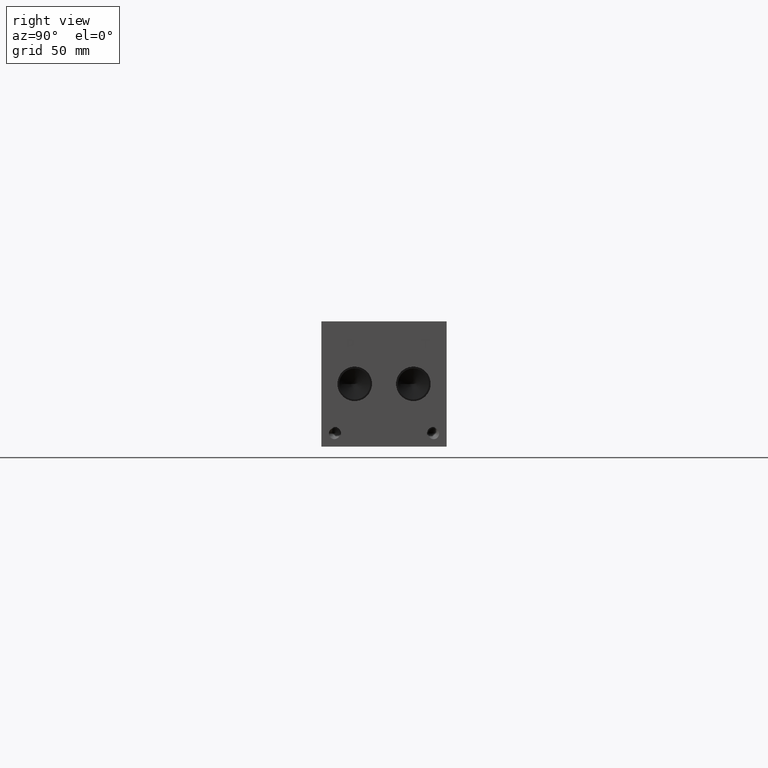
[diagram: clean part render]
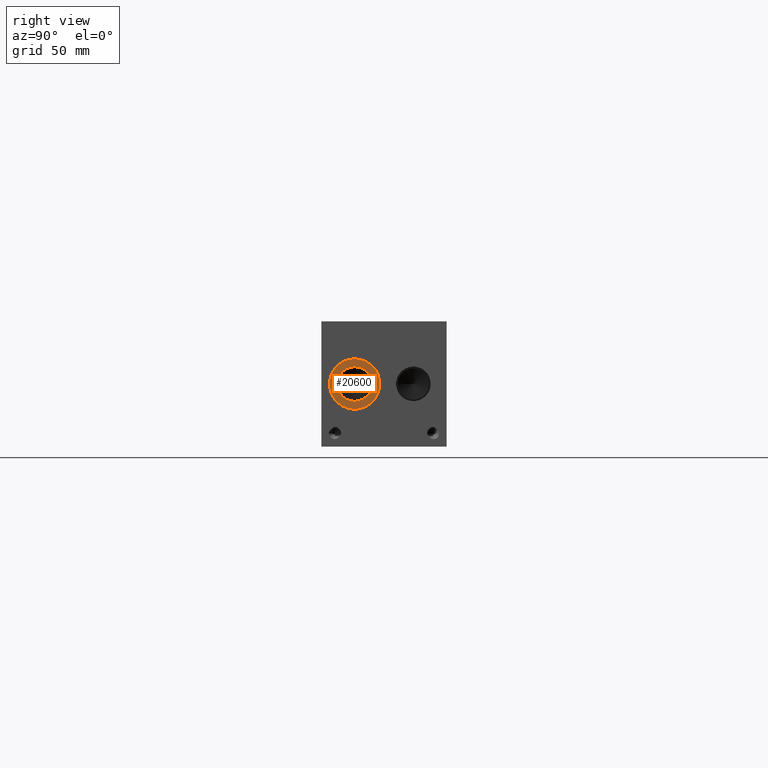
[diagram: same view with one face highlighted and labeled with its STEP entity id]
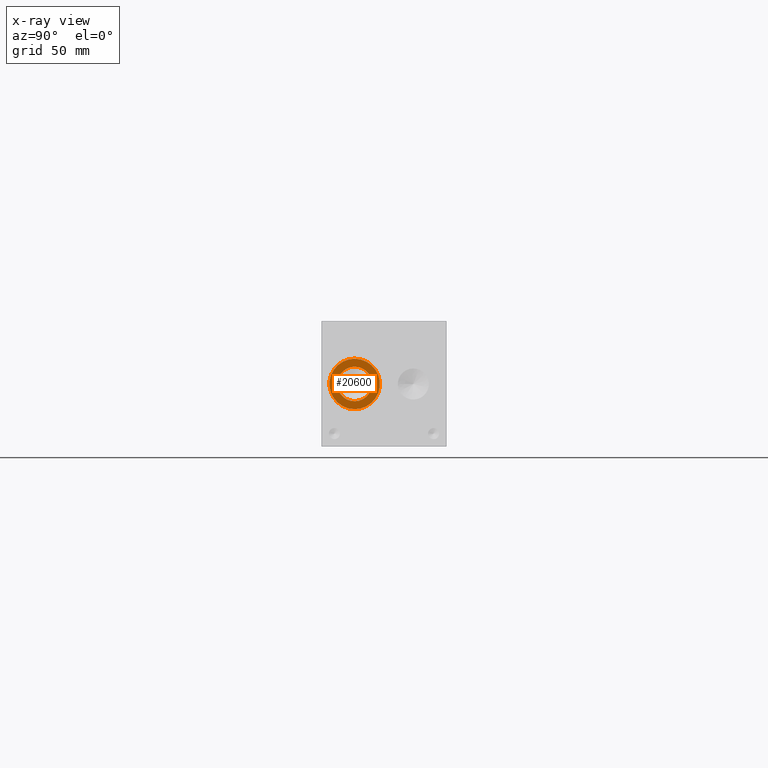
[diagram: x-ray of the same camera — body ghosted, the highlighted face saturated]
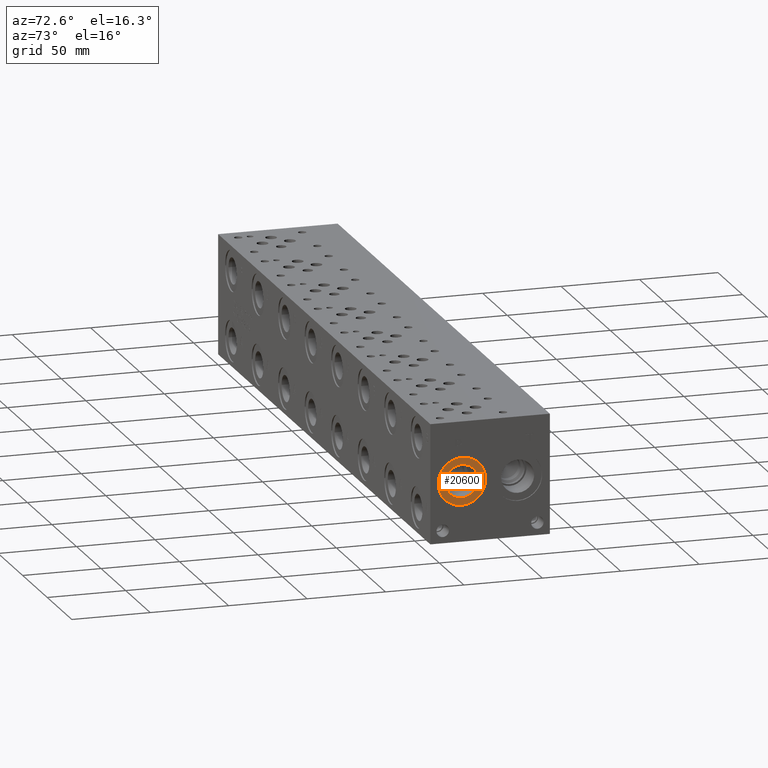
[diagram: same view with one face highlighted and labeled with its STEP entity id]
A machine part, right view. The second image highlights one B-rep face of the part: STEP entity #20600.
The next image is the same camera in x-ray: the body ghosted, the highlighted face saturated — about 0% of this face is hidden behind the body in this view.
A second angle (auxiliary view) of the same face is appended — the face is thin or edge-on in the first view.
In plain terms, the highlighted planar face has unit normal (-1, 0, 0).
Its self-contained STEP definition (entity closure, byte-faithful):
#827=CIRCLE('',#21726,15.3416);
#828=CIRCLE('',#21727,15.3416);
#829=CIRCLE('',#21729,10.5283);
#830=CIRCLE('',#21730,10.5283);
#1888=FACE_BOUND('',#4053,.T.);
#2834=FACE_OUTER_BOUND('',#4052,.T.);
#4052=EDGE_LOOP('',(#17224,#17225));
#4053=EDGE_LOOP('',(#17226,#17227));
#9355=VERTEX_POINT('',#34967);
#9356=VERTEX_POINT('',#34969);
#9357=VERTEX_POINT('',#34973);
#9358=VERTEX_POINT('',#34974);
#12122=EDGE_CURVE('',#9355,#9356,#827,.T.);
#12123=EDGE_CURVE('',#9356,#9355,#828,.T.);
#12124=EDGE_CURVE('',#9357,#9358,#829,.T.);
#12125=EDGE_CURVE('',#9358,#9357,#830,.T.);
#17224=ORIENTED_EDGE('',*,*,#12123,.F.);
#17225=ORIENTED_EDGE('',*,*,#12122,.F.);
#17226=ORIENTED_EDGE('',*,*,#12124,.T.);
#17227=ORIENTED_EDGE('',*,*,#12125,.T.);
#19061=PLANE('',#21728);
#20600=ADVANCED_FACE('',(#2834,#1888),#19061,.F.);
#21726=AXIS2_PLACEMENT_3D('',#34970,#25644,#25645);
#21727=AXIS2_PLACEMENT_3D('',#34971,#25646,#25647);
#21728=AXIS2_PLACEMENT_3D('',#34972,#25648,#25649);
#21729=AXIS2_PLACEMENT_3D('',#34975,#25650,#25651);
#21730=AXIS2_PLACEMENT_3D('',#34976,#25652,#25653);
#25644=DIRECTION('center_axis',(-1.,0.,0.));
#25645=DIRECTION('ref_axis',(0.,0.,1.));
#25646=DIRECTION('center_axis',(-1.,0.,0.));
#25647=DIRECTION('ref_axis',(0.,0.,1.));
#25648=DIRECTION('center_axis',(-1.,0.,0.));
#25649=DIRECTION('ref_axis',(0.,0.,1.));
#25650=DIRECTION('center_axis',(-1.,0.,0.));
#25651=DIRECTION('ref_axis',(0.,0.,1.));
#25652=DIRECTION('center_axis',(-1.,0.,0.));
#25653=DIRECTION('ref_axis',(0.,0.,1.));
#34967=CARTESIAN_POINT('',(431.0126,20.2438,53.4416));
#34969=CARTESIAN_POINT('',(431.0126,20.2438,22.7584));
#34970=CARTESIAN_POINT('Origin',(431.0126,20.2438,38.1));
#34971=CARTESIAN_POINT('Origin',(431.0126,20.2438,38.1));
#34972=CARTESIAN_POINT('Origin',(431.0126,20.2438,27.5717));
#34973=CARTESIAN_POINT('',(431.0126,20.2438,27.5717));
#34974=CARTESIAN_POINT('',(431.0126,20.2438,48.6283));
#34975=CARTESIAN_POINT('Origin',(431.0126,20.2438,38.1));
#34976=CARTESIAN_POINT('Origin',(431.0126,20.2438,38.1));